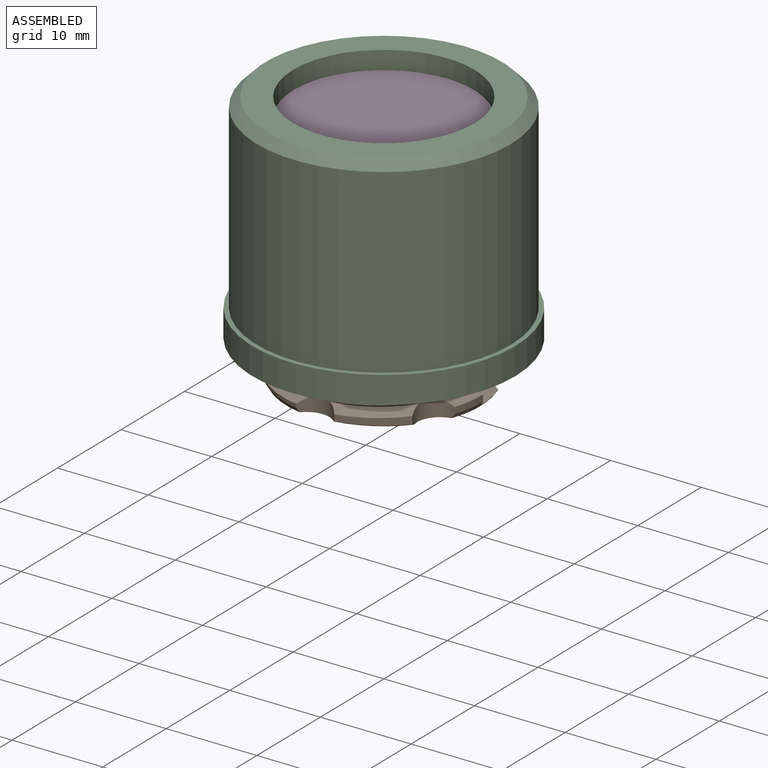
[diagram: assembled view]
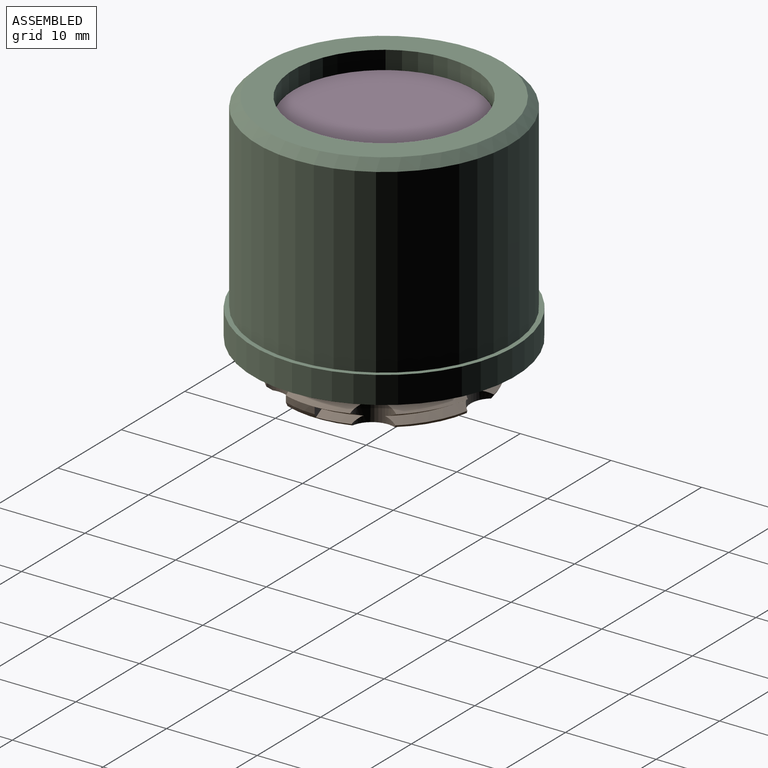
[diagram: assembled view, second angle]
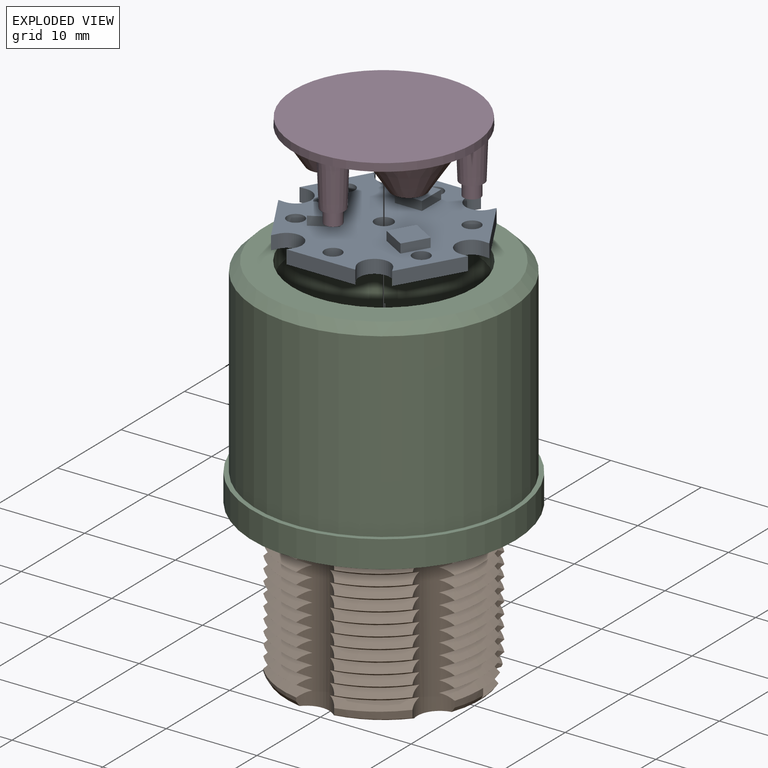
[diagram: exploded view]
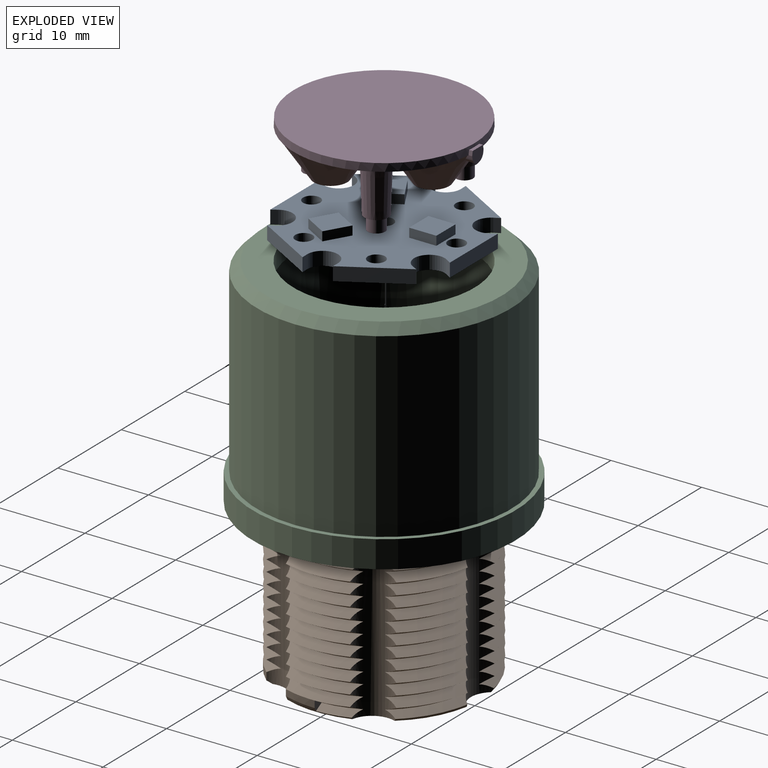
[diagram: exploded view, second angle]
ASSEMBLY  parts=4 mates=4
PART A: 48 faces, bbox 19.8x21x2.5 mm
  f0: cylinder r=1.69mm len=3.19mm, axis (0,0,-1), area 8.2mm2, adj f1,f30,f31,f32
  f1: plane 1.5x0.63mm, normal (-0.47,0.88,0), area 1.1mm2, adj f0,f2,f31,f32
  f2: plane 6.58x3.76mm, normal (-0.5,-0.87,0), area 11.4mm2, adj f1,f3,f31,f32
  f3: plane 1.5x0.71mm, normal (1,0.04,0), area 1.1mm2, adj f2,f4,f31,f32
  f4: cylinder r=1.69mm len=3.39mm, axis (0,0,-1), area 8.2mm2, adj f3,f5,f31,f32
  f5: plane 1.5x0.71mm, normal (-1,0.03,0), area 1.1mm2, adj f4,f6,f31,f32
  f6: plane 6.54x3.82mm, normal (0.5,-0.86,0), area 11.4mm2, adj f5,f7,f31,f32
  f7: plane 1.5x0.63mm, normal (0.47,0.88,0), area 1.1mm2, adj f6,f8,f31,f32
  f8: cylinder r=1.69mm len=3.2mm, axis (0,0,-1), area 8.2mm2, adj f7,f9,f31,f32
  f9: plane 1.5x0.61mm, normal (-0.53,-0.85,0), area 1.1mm2, adj f8,f10,f31,f32
  f10: plane 7.58x1.5mm, normal (1,0,0), area 11.4mm2, adj f9,f11,f31,f32
  f11: plane 1.5x0.6mm, normal (-0.53,0.85,0), area 1.1mm2, adj f10,f12,f31,f32
  f12: cylinder r=1.69mm len=3.19mm, axis (0,0,-1), area 8.2mm2, adj f11,f13,f31,f32
  f13: plane 1.5x0.63mm, normal (0.47,-0.88,0), area 1.1mm2, adj f12,f14,f31,f32
  f14: plane 6.58x3.76mm, normal (0.5,0.87,0), area 11.4mm2, adj f13,f15,f31,f32
  f15: plane 1.5x0.71mm, normal (-1,-0.04,0), area 1.1mm2, adj f14,f16,f31,f32
  f16: cylinder r=1.69mm len=3.39mm, axis (0,0,-1), area 8.2mm2, adj f15,f17,f31,f32
  f17: plane 1.5x0.71mm, normal (1,-0.03,0), area 1.1mm2, adj f16,f18,f31,f32
  f18: plane 6.54x3.82mm, normal (-0.5,0.86,0), area 11.4mm2, adj f17,f19,f31,f32
  f19: plane 1.5x0.63mm, normal (-0.47,-0.88,0), area 1.1mm2, adj f18,f20,f31,f32
  f20: cylinder r=1.69mm len=3.2mm, axis (0,0,-1), area 8.2mm2, adj f19,f21,f31,f32
  f21: plane 1.5x0.61mm, normal (0.53,0.85,0), area 1.1mm2, adj f20,f22,f31,f32
  f22: plane 7.58x1.5mm, normal (-1,0,0), area 11.4mm2, adj f21,f30,f31,f32
  f23: cylinder r=0.95mm len=1.9mm, axis (0,0,-1), area 9mm2, adj f31,f32
  f24: cylinder r=0.95mm len=1.9mm, axis (0,0,-1), area 9mm2, adj f31,f32
  f25: cylinder r=0.95mm len=1.9mm, axis (0,0,-1), area 9mm2, adj f31,f32
  f26: cylinder r=0.95mm len=1.9mm, axis (0,0,-1), area 9mm2, adj f31,f32
  f27: cylinder r=0.95mm len=1.9mm, axis (0,0,-1), area 9mm2, adj f31,f32
  f28: cylinder r=0.95mm len=1.9mm, axis (0,0,-1), area 9mm2, adj f31,f32
  f29: cylinder r=1mm len=2mm, axis (0,0,-1), area 9.4mm2, adj f31,f32
  f30: plane 1.5x0.6mm, normal (0.53,-0.85,0), area 1.1mm2, adj f0,f22,f31,f32
  f31: plane 20.95x19.83mm, normal (0,0,1), area 240mm2, adj f0,f1,f2,f3,f4,f5,f6,f7
  f32: plane 20.95x19.83mm, normal (0,0,-1), area 267mm2, adj f0,f1,f2,f3,f4,f5,f6,f7
  f33: plane 3x1mm, normal (0,1,0), area 3mm2, adj f31,f34,f36,f37
  f34: plane 3x1mm, normal (-1,0,0), area 3mm2, adj f31,f33,f35,f37
  f35: plane 3x1mm, normal (0,-1,0), area 3mm2, adj f31,f34,f36,f37
  f36: plane 3x1mm, normal (1,0,0), area 3mm2, adj f31,f33,f35,f37
  f37: plane 3x3mm, normal (0,0,1), area 9mm2, adj f33,f34,f35,f36
  f38: plane 2.6x1.5mm, normal (-0.87,-0.5,0), area 3mm2, adj f31,f39,f41,f42
  f39: plane 2.6x1.5mm, normal (0.5,-0.87,0), area 3mm2, adj f31,f38,f40,f42
  f40: plane 2.6x1.5mm, normal (0.87,0.5,0), area 3mm2, adj f31,f39,f41,f42
  f41: plane 2.6x1.5mm, normal (-0.5,0.87,0), area 3mm2, adj f31,f38,f40,f42
  f42: plane 4.1x4.1mm, normal (0,0,1), area 9mm2, adj f38,f39,f40,f41
  f43: plane 2.6x1.5mm, normal (0.87,-0.5,0), area 3mm2, adj f31,f44,f46,f47
  f44: plane 2.6x1.5mm, normal (0.5,0.87,0), area 3mm2, adj f31,f43,f45,f47
  f45: plane 2.6x1.5mm, normal (-0.87,0.5,0), area 3mm2, adj f31,f44,f46,f47
  f46: plane 2.6x1.5mm, normal (-0.5,-0.87,0), area 3mm2, adj f31,f43,f45,f47
  f47: plane 4.1x4.1mm, normal (0,0,1), area 9mm2, adj f43,f44,f45,f46
PART B: 240 faces, bbox 22x25.4x15.9 mm
  f0: cylinder r=10.95mm len=6.17mm, axis (0,0,-1), area 0mm2, adj f87,f88,f111,f114
  f1: cylinder r=10.95mm len=6.17mm, axis (0,0,-1), area 0mm2, adj f87,f88,f113,f116
  f2: cylinder r=10.95mm len=6.17mm, axis (0,0,-1), area 0mm2, adj f87,f88,f115,f118
  f3: cylinder r=10.95mm len=6.17mm, axis (0,0,-1), area 0mm2, adj f87,f88,f117,f120
  f4: cylinder r=10.95mm len=6.17mm, axis (0,0,-1), area 0mm2, adj f87,f88,f119,f122
  f5: cylinder r=10.95mm len=6.17mm, axis (0,0,-1), area 0mm2, adj f87,f88,f121,f124
  f6: cylinder r=10.95mm len=6.17mm, axis (0,0,-1), area 0mm2, adj f87,f88,f123,f126
  f7: cylinder r=10.95mm len=6.17mm, axis (0,0,-1), area 0mm2, adj f87,f88,f125,f128
  f8: cylinder r=10.95mm len=6.17mm, axis (0,0,-1), area 0mm2, adj f87,f88,f127,f130
  f9: cylinder r=10.95mm len=6.17mm, axis (0,0,-1), area 0mm2, adj f87,f88,f129,f132
  f10: cylinder r=10.95mm len=6.17mm, axis (0,0,-1), area 0mm2, adj f87,f88,f108,f131
  f11: cylinder r=10.95mm len=6.14mm, axis (0,0,-1), area 0mm2, adj f86,f87,f103,f158
  f12: cylinder r=10.95mm len=6.14mm, axis (0,0,-1), area 0mm2, adj f86,f87,f157,f160
  f13: cylinder r=10.95mm len=6.14mm, axis (0,0,-1), area 0mm2, adj f86,f87,f159,f162
  f14: cylinder r=10.95mm len=6.14mm, axis (0,0,-1), area 0mm2, adj f86,f87,f161,f164
  f15: cylinder r=10.95mm len=6.14mm, axis (0,0,-1), area 0mm2, adj f86,f87,f163,f166
  f16: cylinder r=10.95mm len=6.14mm, axis (0,0,-1), area 0mm2, adj f86,f87,f165,f168
  f17: cylinder r=10.95mm len=6.14mm, axis (0,0,-1), area 0mm2, adj f86,f87,f167,f170
  f18: cylinder r=10.95mm len=6.14mm, axis (0,0,-1), area 0mm2, adj f86,f87,f169,f172
  f19: cylinder r=10.95mm len=6.14mm, axis (0,0,-1), area 0mm2, adj f86,f87,f171,f174
  f20: cylinder r=10.95mm len=6.14mm, axis (0,0,-1), area 0mm2, adj f86,f87,f173,f176
  f21: cylinder r=10.95mm len=6.14mm, axis (0,0,-1), area 0mm2, adj f86,f87,f110,f175
  f22: cylinder r=10.95mm len=7.11mm, axis (0,0,-1), area 0mm2, adj f85,f86,f101,f178
  f23: cylinder r=10.95mm len=7.11mm, axis (0,0,-1), area 0mm2, adj f85,f86,f177,f180
  f24: cylinder r=10.95mm len=7.11mm, axis (0,0,-1), area 0mm2, adj f85,f86,f179,f182
  f25: cylinder r=10.95mm len=7.11mm, axis (0,0,-1), area 0mm2, adj f85,f86,f181,f184
  f26: cylinder r=10.95mm len=7.11mm, axis (0,0,-1), area 0mm2, adj f85,f86,f183,f186
  f27: cylinder r=10.95mm len=7.11mm, axis (0,0,-1), area 0mm2, adj f85,f86,f185,f188
  f28: cylinder r=10.95mm len=7.11mm, axis (0,0,-1), area 0mm2, adj f85,f86,f187,f190
  f29: cylinder r=10.95mm len=7.11mm, axis (0,0,-1), area 0mm2, adj f85,f86,f189,f192
  f30: cylinder r=10.95mm len=7.11mm, axis (0,0,-1), area 0mm2, adj f85,f86,f191,f194
  f31: cylinder r=10.95mm len=7.11mm, axis (0,0,-1), area 0mm2, adj f85,f86,f193,f196
  f32: cylinder r=10.95mm len=7.11mm, axis (0,0,-1), area 2.6mm2, adj f85,f86,f93,f105,f106,f195
  f33: cylinder r=10.95mm len=6.17mm, axis (0,0,-1), area 0mm2, adj f84,f85,f99,f198
  f34: cylinder r=10.95mm len=6.17mm, axis (0,0,-1), area 0mm2, adj f84,f85,f197,f200
  f35: cylinder r=10.95mm len=6.17mm, axis (0,0,-1), area 0mm2, adj f84,f85,f199,f202
  f36: cylinder r=10.95mm len=6.17mm, axis (0,0,-1), area 0mm2, adj f84,f85,f201,f204
  f37: cylinder r=10.95mm len=6.17mm, axis (0,0,-1), area 0mm2, adj f84,f85,f203,f206
  f38: cylinder r=10.95mm len=6.17mm, axis (0,0,-1), area 0mm2, adj f84,f85,f205,f208
  f39: cylinder r=10.95mm len=6.17mm, axis (0,0,-1), area 0mm2, adj f84,f85,f207,f210
  f40: cylinder r=10.95mm len=6.17mm, axis (0,0,-1), area 0mm2, adj f84,f85,f209,f212
  f41: cylinder r=10.95mm len=6.17mm, axis (0,0,-1), area 0mm2, adj f84,f85,f211,f214
  f42: cylinder r=10.95mm len=6.17mm, axis (0,0,-1), area 0mm2, adj f84,f85,f213,f216
  f43: cylinder r=10.95mm len=6.14mm, axis (0,0,-1), area 0mm2, adj f83,f84,f218,f239
  f44: cylinder r=10.95mm len=6.14mm, axis (0,0,-1), area 0mm2, adj f83,f84,f217,f220
  f45: cylinder r=10.95mm len=6.14mm, axis (0,0,-1), area 0mm2, adj f83,f84,f219,f222
  f46: cylinder r=10.95mm len=6.14mm, axis (0,0,-1), area 0mm2, adj f83,f84,f221,f224
  f47: cylinder r=10.95mm len=6.14mm, axis (0,0,-1), area 0mm2, adj f83,f84,f223,f226
  f48: cylinder r=10.95mm len=6.14mm, axis (0,0,-1), area 0mm2, adj f83,f84,f225,f228
  f49: cylinder r=10.95mm len=6.14mm, axis (0,0,-1), area 0mm2, adj f83,f84,f227,f230
  f50: cylinder r=10.95mm len=6.14mm, axis (0,0,-1), area 0mm2, adj f83,f84,f229,f232
  f51: cylinder r=10.95mm len=6.14mm, axis (0,0,-1), area 0mm2, adj f83,f84,f231,f234
  f52: cylinder r=10.95mm len=6.14mm, axis (0,0,-1), area 0mm2, adj f83,f84,f233,f236
  f53: cylinder r=10.95mm len=6.14mm, axis (0,0,-1), area 0mm2, adj f83,f84,f235,f238
  f54: cylinder r=10.95mm len=7.11mm, axis (0,0,-1), area 0mm2, adj f83,f88,f154,f155
  f55: cylinder r=10.95mm len=7.11mm, axis (0,0,-1), area 0mm2, adj f83,f88,f152,f153
  f56: cylinder r=10.95mm len=7.11mm, axis (0,0,-1), area 0mm2, adj f83,f88,f150,f151
  f57: cylinder r=10.95mm len=7.11mm, axis (0,0,-1), area 0mm2, adj f83,f88,f148,f149
  f58: cylinder r=10.95mm len=7.11mm, axis (0,0,-1), area 0mm2, adj f83,f88,f146,f147
  f59: cylinder r=10.95mm len=7.11mm, axis (0,0,-1), area 0mm2, adj f83,f88,f144,f145
  f60: cylinder r=10.95mm len=7.11mm, axis (0,0,-1), area 0mm2, adj f83,f88,f142,f143
  f61: cylinder r=10.95mm len=7.11mm, axis (0,0,-1), area 0mm2, adj f83,f88,f140,f141
  f62: cylinder r=10.95mm len=7.11mm, axis (0,0,-1), area 0mm2, adj f83,f88,f138,f139
  f63: cylinder r=10.95mm len=7.11mm, axis (0,0,-1), area 0mm2, adj f83,f88,f136,f137
  f64: cylinder r=10.95mm len=7.11mm, axis (0,0,-1), area 0mm2, adj f83,f88,f134,f135
  f65: cylinder r=10.95mm len=6.17mm, axis (0,0,-1), area 5.4mm2, adj f84,f85,f94,f215
  f66: cylinder r=10.95mm len=6.14mm, axis (0,0,-1), area 2.4mm2, adj f83,f84,f92,f237
  f67: plane 21.32x20.98mm, normal (0,0,-1), area 268mm2, adj f68,f71,f73,f75,f77,f79,f81,f83
  f68: cylinder r=3mm len=15mm, axis (0,0,-1), area 282.7mm2, adj f67,f70
  f69: cylinder r=10.95mm len=7.11mm, axis (0,0,-1), area 0.9mm2, adj f83,f88,f91,f133
  f70: plane 20.7x20.4mm, normal (0,0,1), area 295mm2, adj f68,f83,f84,f85,f86,f87,f88,f95
  f71: cylinder r=1.5mm len=10mm, axis (0,0,-1), area 94.2mm2, adj f67,f72
  f72: plane 3x3mm, normal (0,0,-1), area 7.1mm2, adj f71
  f73: cylinder r=1.5mm len=10mm, axis (0,0,-1), area 94.2mm2, adj f67,f74
  f74: plane 3x3mm, normal (0,0,-1), area 7.1mm2, adj f73
  f75: cylinder r=1.5mm len=10mm, axis (0,0,-1), area 94.2mm2, adj f67,f76
  f76: plane 3x3mm, normal (0,0,-1), area 7.1mm2, adj f75
  f77: cylinder r=1.5mm len=10mm, axis (0,0,-1), area 94.2mm2, adj f67,f78
  f78: plane 3x3mm, normal (0,0,-1), area 7.1mm2, adj f77
  f79: cylinder r=1.5mm len=10mm, axis (0,0,-1), area 94.2mm2, adj f67,f80
  f80: plane 3x3mm, normal (0,0,-1), area 7.1mm2, adj f79
  f81: cylinder r=1.5mm len=10mm, axis (0,0,-1), area 94.2mm2, adj f67,f82
  f82: plane 3x3mm, normal (0,0,-1), area 7.1mm2, adj f81
  f83: cylinder r=2.5mm len=15mm, axis (0,0,-1), area 55.8mm2, adj f43,f44,f45,f46,f47,f48,f49,f50
  f84: cylinder r=2.5mm len=15mm, axis (0,0,-1), area 56.2mm2, adj f33,f34,f35,f36,f37,f38,f39,f40
  f85: cylinder r=2.5mm len=15mm, axis (0,0,-1), area 56.2mm2, adj f22,f23,f24,f25,f26,f27,f28,f29
  f86: cylinder r=2.5mm len=15mm, axis (0,0,-1), area 54.8mm2, adj f11,f12,f13,f14,f15,f16,f17,f18
  f87: cylinder r=2.5mm len=15mm, axis (0,0,-1), area 54.9mm2, adj f0,f1,f2,f3,f4,f5,f6,f7
  f88: cylinder r=2.5mm len=15mm, axis (0,0,-1), area 55.3mm2, adj f0,f1,f2,f3,f4,f5,f6,f7
  f89: cone r=10.95mm half-angle=30deg, axis (0,0,1), area 2.4mm2, adj f67,f86,f87,f109
  f90: cone r=10.95mm half-angle=30deg, axis (0,0,1), area 3.7mm2, adj f67,f87,f88,f107
  f91: cone r=10.95mm half-angle=30deg, axis (0,0,1), area 4.2mm2, adj f67,f69,f83,f88
  f92: cone r=10.95mm half-angle=30deg, axis (0,0,1), area 4.2mm2, adj f66,f67,f83,f84
  f93: cone r=10.95mm half-angle=30deg, axis (0,0,1), area 2.7mm2, adj f32,f67,f85,f86,f104,f105
  f94: cone r=10.95mm half-angle=60deg, axis (0,0,1), area 4.2mm2, adj f65,f67,f84,f85
  f95: cone r=10.45mm half-angle=60deg, axis (0,0,-1), area 0.6mm2, adj f70,f86,f87,f102
  f96: cone r=10.45mm half-angle=60deg, axis (0,0,-1), area 2.1mm2, adj f70,f85,f86,f100
  f97: cone r=10.45mm half-angle=60deg, axis (0,0,-1), area 3.7mm2, adj f70,f84,f85,f98
  f98: bspline ~16.43x12.64mm, area 9.3mm2, adj f84,f85,f97,f99
  f99: bspline ~16.43x12.64mm, area 9.9mm2, adj f33,f84,f85,f98
  f100: bspline ~18.97x6.03mm, area 7.7mm2, adj f85,f86,f96,f101
  f101: bspline ~18.97x6.03mm, area 9.9mm2, adj f22,f85,f86,f100
  f102: bspline ~16.43x12.64mm, area 6.1mm2, adj f86,f87,f95,f103
  f103: bspline ~16.43x12.64mm, area 9.9mm2, adj f11,f86,f87,f102
  f104: bspline ~9.48x6.03mm, area 4mm2, adj f86,f93,f105,f106
  f105: plane 1.13x1.1mm, normal (0,1,0), area 0.6mm2, adj f32,f93,f104,f106
  f106: bspline ~9.48x6.03mm, area 4.9mm2, adj f32,f86,f104,f105
  f107: bspline ~16.43x12.64mm, area 9.6mm2, adj f87,f88,f90,f108
  f108: bspline ~16.43x12.64mm, area 9.9mm2, adj f10,f87,f88,f107
  f109: bspline ~16.43x12.64mm, area 8.8mm2, adj f86,f87,f89,f110
  f110: bspline ~16.43x12.64mm, area 9.9mm2, adj f21,f86,f87,f109
  f111: bspline ~16.43x12.64mm, area 9.9mm2, adj f0,f87,f88,f112
  f112: bspline ~16.43x12.64mm, area 3.4mm2, adj f70,f87,f88,f111
  f113: bspline ~16.43x12.64mm, area 9.9mm2, adj f1,f87,f88,f114
  f114: bspline ~16.43x12.64mm, area 9.9mm2, adj f0,f87,f88,f113
  f115: bspline ~16.43x12.64mm, area 9.9mm2, adj f2,f87,f88,f116
  f116: bspline ~16.43x12.64mm, area 9.9mm2, adj f1,f87,f88,f115
  f117: bspline ~16.43x12.64mm, area 9.9mm2, adj f3,f87,f88,f118
  f118: bspline ~16.43x12.64mm, area 9.9mm2, adj f2,f87,f88,f117
  f119: bspline ~16.43x12.64mm, area 9.9mm2, adj f4,f87,f88,f120
  f120: bspline ~16.43x12.64mm, area 9.9mm2, adj f3,f87,f88,f119
  f121: bspline ~16.43x12.64mm, area 9.9mm2, adj f5,f87,f88,f122
  f122: bspline ~16.43x12.64mm, area 9.9mm2, adj f4,f87,f88,f121
  f123: bspline ~16.43x12.64mm, area 9.9mm2, adj f6,f87,f88,f124
  f124: bspline ~16.43x12.64mm, area 9.9mm2, adj f5,f87,f88,f123
  f125: bspline ~16.43x12.64mm, area 9.9mm2, adj f7,f87,f88,f126
  f126: bspline ~16.43x12.64mm, area 9.9mm2, adj f6,f87,f88,f125
  f127: bspline ~16.43x12.64mm, area 9.9mm2, adj f8,f87,f88,f128
  f128: bspline ~16.43x12.64mm, area 9.9mm2, adj f7,f87,f88,f127
  f129: bspline ~16.43x12.64mm, area 9.9mm2, adj f9,f87,f88,f130
  f130: bspline ~16.43x12.64mm, area 9.9mm2, adj f8,f87,f88,f129
  f131: bspline ~16.43x12.64mm, area 9.9mm2, adj f10,f87,f88,f132
  f132: bspline ~16.43x12.64mm, area 9.9mm2, adj f9,f87,f88,f131
  f133: bspline ~18.97x6.03mm, area 9.9mm2, adj f69,f83,f88,f134
  f134: bspline ~18.97x6.03mm, area 9.9mm2, adj f64,f83,f88,f133
  f135: bspline ~18.97x6.03mm, area 9.9mm2, adj f64,f83,f88,f136
  f136: bspline ~18.97x6.03mm, area 9.9mm2, adj f63,f83,f88,f135
  f137: bspline ~18.97x6.03mm, area 9.9mm2, adj f63,f83,f88,f138
  f138: bspline ~18.97x6.03mm, area 9.9mm2, adj f62,f83,f88,f137
  f139: bspline ~18.97x6.03mm, area 9.9mm2, adj f62,f83,f88,f140
  f140: bspline ~18.97x6.03mm, area 9.9mm2, adj f61,f83,f88,f139
  f141: bspline ~18.97x6.03mm, area 9.9mm2, adj f61,f83,f88,f142
  f142: bspline ~18.97x6.03mm, area 9.9mm2, adj f60,f83,f88,f141
  f143: bspline ~18.97x6.03mm, area 9.9mm2, adj f60,f83,f88,f144
  f144: bspline ~18.97x6.03mm, area 9.9mm2, adj f59,f83,f88,f143
  f145: bspline ~18.97x6.03mm, area 9.9mm2, adj f59,f83,f88,f146
  f146: bspline ~18.97x6.03mm, area 9.9mm2, adj f58,f83,f88,f145
  f147: bspline ~18.97x6.03mm, area 9.9mm2, adj f58,f83,f88,f148
  f148: bspline ~18.97x6.03mm, area 9.9mm2, adj f57,f83,f88,f147
  f149: bspline ~18.97x6.03mm, area 9.9mm2, adj f57,f83,f88,f150
  f150: bspline ~18.97x6.03mm, area 9.9mm2, adj f56,f83,f88,f149
  f151: bspline ~18.97x6.03mm, area 9.9mm2, adj f56,f83,f88,f152
  f152: bspline ~18.97x6.03mm, area 9.9mm2, adj f55,f83,f88,f151
  f153: bspline ~18.97x6.03mm, area 9.9mm2, adj f55,f83,f88,f154
  f154: bspline ~18.97x6.03mm, area 9.9mm2, adj f54,f83,f88,f153
  f155: bspline ~18.97x6.03mm, area 9.5mm2, adj f54,f70,f83,f88,f156
  f156: bspline ~18.97x6.03mm, area 0.4mm2, adj f70,f88,f155
  f157: bspline ~16.43x12.64mm, area 9.9mm2, adj f12,f86,f87,f158
  f158: bspline ~16.43x12.64mm, area 9.9mm2, adj f11,f86,f87,f157
  f159: bspline ~16.43x12.64mm, area 9.9mm2, adj f13,f86,f87,f160
  f160: bspline ~16.43x12.64mm, area 9.9mm2, adj f12,f86,f87,f159
  f161: bspline ~16.43x12.64mm, area 9.9mm2, adj f14,f86,f87,f162
  f162: bspline ~16.43x12.64mm, area 9.9mm2, adj f13,f86,f87,f161
  f163: bspline ~16.43x12.64mm, area 9.9mm2, adj f15,f86,f87,f164
  f164: bspline ~16.43x12.64mm, area 9.9mm2, adj f14,f86,f87,f163
  f165: bspline ~16.43x12.64mm, area 9.9mm2, adj f16,f86,f87,f166
  f166: bspline ~16.43x12.64mm, area 9.9mm2, adj f15,f86,f87,f165
  f167: bspline ~16.43x12.64mm, area 9.9mm2, adj f17,f86,f87,f168
  f168: bspline ~16.43x12.64mm, area 9.9mm2, adj f16,f86,f87,f167
  f169: bspline ~16.43x12.64mm, area 9.9mm2, adj f18,f86,f87,f170
  f170: bspline ~16.43x12.64mm, area 9.9mm2, adj f17,f86,f87,f169
  f171: bspline ~16.43x12.64mm, area 9.9mm2, adj f19,f86,f87,f172
  f172: bspline ~16.43x12.64mm, area 9.9mm2, adj f18,f86,f87,f171
  f173: bspline ~16.43x12.64mm, area 9.9mm2, adj f20,f86,f87,f174
  f174: bspline ~16.43x12.64mm, area 9.9mm2, adj f19,f86,f87,f173
  f175: bspline ~16.43x12.64mm, area 9.9mm2, adj f21,f86,f87,f176
  f176: bspline ~16.43x12.64mm, area 9.9mm2, adj f20,f86,f87,f175
  f177: bspline ~18.97x6.03mm, area 9.9mm2, adj f23,f85,f86,f178
  f178: bspline ~18.97x6.03mm, area 9.9mm2, adj f22,f85,f86,f177
  f179: bspline ~18.97x6.03mm, area 9.9mm2, adj f24,f85,f86,f180
  f180: bspline ~18.97x6.03mm, area 9.9mm2, adj f23,f85,f86,f179
  f181: bspline ~18.97x6.03mm, area 9.9mm2, adj f25,f85,f86,f182
  f182: bspline ~18.97x6.03mm, area 9.9mm2, adj f24,f85,f86,f181
  f183: bspline ~18.97x6.03mm, area 9.9mm2, adj f26,f85,f86,f184
  f184: bspline ~18.97x6.03mm, area 9.9mm2, adj f25,f85,f86,f183
  f185: bspline ~18.97x6.03mm, area 9.9mm2, adj f27,f85,f86,f186
  f186: bspline ~18.97x6.03mm, area 9.9mm2, adj f26,f85,f86,f185
  f187: bspline ~18.97x6.03mm, area 9.9mm2, adj f28,f85,f86,f188
  f188: bspline ~18.97x6.03mm, area 9.9mm2, adj f27,f85,f86,f187
  f189: bspline ~18.97x6.03mm, area 9.9mm2, adj f29,f85,f86,f190
  f190: bspline ~18.97x6.03mm, area 9.9mm2, adj f28,f85,f86,f189
  f191: bspline ~18.97x6.03mm, area 9.9mm2, adj f30,f85,f86,f192
  f192: bspline ~18.97x6.03mm, area 9.9mm2, adj f29,f85,f86,f191
  f193: bspline ~18.97x6.03mm, area 9.9mm2, adj f31,f85,f86,f194
  f194: bspline ~18.97x6.03mm, area 9.9mm2, adj f30,f85,f86,f193
  f195: bspline ~18.97x6.03mm, area 9.9mm2, adj f32,f85,f86,f196
  f196: bspline ~18.97x6.03mm, area 9.9mm2, adj f31,f85,f86,f195
  f197: bspline ~16.43x12.64mm, area 9.9mm2, adj f34,f84,f85,f198
  f198: bspline ~16.43x12.64mm, area 9.9mm2, adj f33,f84,f85,f197
  f199: bspline ~16.43x12.64mm, area 9.9mm2, adj f35,f84,f85,f200
  f200: bspline ~16.43x12.64mm, area 9.9mm2, adj f34,f84,f85,f199
  f201: bspline ~16.43x12.64mm, area 9.9mm2, adj f36,f84,f85,f202
  f202: bspline ~16.43x12.64mm, area 9.9mm2, adj f35,f84,f85,f201
  f203: bspline ~16.43x12.64mm, area 9.9mm2, adj f37,f84,f85,f204
  f204: bspline ~16.43x12.64mm, area 9.9mm2, adj f36,f84,f85,f203
  f205: bspline ~16.43x12.64mm, area 9.9mm2, adj f38,f84,f85,f206
  f206: bspline ~16.43x12.64mm, area 9.9mm2, adj f37,f84,f85,f205
  f207: bspline ~16.43x12.64mm, area 9.9mm2, adj f39,f84,f85,f208
  f208: bspline ~16.43x12.64mm, area 9.9mm2, adj f38,f84,f85,f207
  f209: bspline ~16.43x12.64mm, area 9.9mm2, adj f40,f84,f85,f210
  f210: bspline ~16.43x12.64mm, area 9.9mm2, adj f39,f84,f85,f209
  f211: bspline ~16.43x12.64mm, area 9.9mm2, adj f41,f84,f85,f212
  f212: bspline ~16.43x12.64mm, area 9.9mm2, adj f40,f84,f85,f211
  f213: bspline ~16.43x12.64mm, area 9.9mm2, adj f42,f84,f85,f214
  f214: bspline ~16.43x12.64mm, area 9.9mm2, adj f41,f84,f85,f213
  f215: bspline ~16.43x12.64mm, area 9.9mm2, adj f65,f84,f85,f216
  f216: bspline ~16.43x12.64mm, area 9.9mm2, adj f42,f84,f85,f215
  f217: bspline ~16.43x12.64mm, area 9.9mm2, adj f44,f83,f84,f218
  f218: bspline ~16.43x12.64mm, area 9.9mm2, adj f43,f83,f84,f217
  f219: bspline ~16.43x12.64mm, area 9.9mm2, adj f45,f83,f84,f220
  f220: bspline ~16.43x12.64mm, area 9.9mm2, adj f44,f83,f84,f219
  f221: bspline ~16.43x12.64mm, area 9.9mm2, adj f46,f83,f84,f222
  f222: bspline ~16.43x12.64mm, area 9.9mm2, adj f45,f83,f84,f221
  f223: bspline ~16.43x12.64mm, area 9.9mm2, adj f47,f83,f84,f224
  f224: bspline ~16.43x12.64mm, area 9.9mm2, adj f46,f83,f84,f223
  f225: bspline ~16.43x12.64mm, area 9.9mm2, adj f48,f83,f84,f226
  f226: bspline ~16.43x12.64mm, area 9.9mm2, adj f47,f83,f84,f225
  f227: bspline ~16.43x12.64mm, area 9.9mm2, adj f49,f83,f84,f228
  f228: bspline ~16.43x12.64mm, area 9.9mm2, adj f48,f83,f84,f227
  f229: bspline ~16.43x12.64mm, area 9.9mm2, adj f50,f83,f84,f230
  f230: bspline ~16.43x12.64mm, area 9.9mm2, adj f49,f83,f84,f229
  f231: bspline ~16.43x12.64mm, area 9.9mm2, adj f51,f83,f84,f232
  f232: bspline ~16.43x12.64mm, area 9.9mm2, adj f50,f83,f84,f231
  f233: bspline ~16.43x12.64mm, area 9.9mm2, adj f52,f83,f84,f234
  f234: bspline ~16.43x12.64mm, area 9.9mm2, adj f51,f83,f84,f233
  f235: bspline ~16.43x12.64mm, area 9.9mm2, adj f53,f83,f84,f236
  f236: bspline ~16.43x12.64mm, area 9.9mm2, adj f52,f83,f84,f235
  f237: bspline ~16.43x12.64mm, area 9.9mm2, adj f66,f83,f84,f238
  f238: bspline ~16.43x12.64mm, area 9.9mm2, adj f53,f83,f84,f237
  f239: bspline ~16.43x12.64mm, area 6.3mm2, adj f43,f70,f83,f84
PART C: 22 faces, bbox 29x29x24.2 mm
  f0: cylinder r=10.95mm len=21.9mm, axis (0,0,-1), area 731.2mm2, adj f1,f14,f18,f19,f20
  f1: cylinder r=10.95mm len=21.9mm, axis (0,0,-1), area 0.7mm2, adj f0,f2,f19,f20
  f2: cylinder r=10.95mm len=21.9mm, axis (0,0,-1), area 0.7mm2, adj f1,f3,f19,f20
  f3: cylinder r=10.95mm len=21.9mm, axis (0,0,-1), area 0.7mm2, adj f2,f4,f19,f20
  f4: cylinder r=10.95mm len=21.9mm, axis (0,0,-1), area 0.7mm2, adj f3,f5,f19,f20
  f5: cylinder r=10.95mm len=21.9mm, axis (0,0,-1), area 0.7mm2, adj f4,f6,f19,f20
  f6: cylinder r=10.95mm len=21.9mm, axis (0,0,-1), area 0.7mm2, adj f5,f7,f19,f20
  f7: cylinder r=10.95mm len=21.9mm, axis (0,0,-1), area 0.7mm2, adj f6,f8,f19,f20
  f8: cylinder r=10.95mm len=21.9mm, axis (0,0,-1), area 0.3mm2, adj f7,f16,f19,f20
  f9: cylinder r=14.5mm len=29mm, axis (0,0,-1), area 273.3mm2, adj f10,f11
  f10: plane 29x29mm, normal (0,0,1), area 44.8mm2, adj f9,f12
  f11: plane 29x29mm, normal (0,0,-1), area 243.1mm2, adj f9,f16
  f12: cylinder r=14mm len=28mm, axis (0,0,-1), area 1759.3mm2, adj f10,f21
  f13: plane 26x26mm, normal (0,0,1), area 216.8mm2, adj f15,f21
  f14: plane 21.9x21.9mm, normal (0,0,-1), area 62.5mm2, adj f0,f15
  f15: cylinder r=10mm len=20mm, axis (0,0,-1), area 125.7mm2, adj f13,f14
  f16: cone r=10.95mm half-angle=30deg, axis (0,0,-1), area 44mm2, adj f8,f11,f17,f20
  f17: plane 1.1x0.94mm, normal (0,1,0), area 0.3mm2, adj f16,f19,f20
  f18: plane 1.24x1.05mm, normal (-0.95,-0.31,0), area 0.7mm2, adj f0,f19,f20
  f19: bspline ~27.83x24.1mm, area 806.1mm2, adj f0,f1,f2,f3,f4,f5,f6,f7
  f20: bspline ~27.83x24.1mm, area 780.1mm2, adj f0,f1,f2,f3,f4,f5,f6,f7
  f21: cone r=13mm half-angle=45deg, axis (0,0,-1), area 120mm2, adj f12,f13
PART D: 44 faces, bbox 20x20.3x7.5 mm
  f0: plane 3.34x3.34mm, normal (0,0,1), area 8.7mm2, adj f5
  f1: plane 3.34x3.34mm, normal (0,0,1), area 8.7mm2, adj f6
  f2: plane 1.9x1.9mm, normal (0,0,1), area 2.8mm2, adj f7
  f3: plane 1.9x1.9mm, normal (0,0,1), area 2.8mm2, adj f8
  f4: plane 1.9x1.9mm, normal (0,0,1), area 2.8mm2, adj f9
  f5: cone r=0mm half-angle=2deg, axis (0,0,1), area 25.2mm2, adj f0,f11
  f6: cone r=0mm half-angle=2deg, axis (0,0,1), area 25.2mm2, adj f1,f13
  f7: cylinder r=0.95mm len=1.9mm, axis (0,0,1), area 9mm2, adj f2,f17
  f8: cylinder r=0.95mm len=1.9mm, axis (0,0,1), area 9mm2, adj f3,f18
  f9: cylinder r=0.95mm len=1.9mm, axis (0,0,1), area 9mm2, adj f4,f19
  f10: plane 3.34x3.34mm, normal (0,0,1), area 8.7mm2, adj f22
  f11: plane 3.7x3.7mm, normal (0,0,1), area 1.1mm2, adj f5,f30
  f12: plane 0.48x0.25mm, normal (0,1,0), area 0.1mm2, adj f14,f30,f31,f40
  f13: plane 3.7x3.7mm, normal (0,0,1), area 1.1mm2, adj f6,f31
  f14: cylinder r=0.75mm len=1.5mm, axis (1,0,0), area 2.5mm2, adj f12,f15,f30,f31
  f15: plane 0.48x0.25mm, normal (0,-1,0), area 0.1mm2, adj f14,f29,f30,f31
  f16: plane 19.91x19.91mm, normal (0,0,-1), area 311.4mm2, adj f32
  f17: plane 2.64x2.64mm, normal (0,0,1), area 2.6mm2, adj f7,f33
  f18: plane 2.64x2.64mm, normal (0,0,1), area 2.6mm2, adj f8,f34
  f19: plane 2.64x2.64mm, normal (0,0,1), area 2.6mm2, adj f9,f35
  f20: plane 1.62x0.41mm, normal (0,0,-1), area 0.6mm2, adj f21,f32,f36,f37
  f21: plane 0.5x0.41mm, normal (-0.98,0,-0.17), area 0.2mm2, adj f20,f32,f37,f38
  f22: cone r=0mm half-angle=2deg, axis (0,0,1), area 25.2mm2, adj f10,f39
  f23: plane 0.42x0.25mm, normal (-0.87,0.5,0), area 0.1mm2, adj f24,f29,f30,f43
  f24: cylinder r=0.75mm len=1.98mm, axis (-0.5,-0.87,0), area 2.5mm2, adj f23,f25,f30,f43
  f25: plane 0.42x0.25mm, normal (0.87,-0.5,0), area 0.1mm2, adj f24,f30,f40,f43
  f26: plane 0.42x0.25mm, normal (-0.87,-0.5,0), area 0.1mm2, adj f27,f31,f40,f43
  f27: cylinder r=0.75mm len=1.98mm, axis (0.5,-0.87,0), area 2.5mm2, adj f26,f28,f31,f43
  f28: plane 0.42x0.25mm, normal (0.87,0.5,0), area 0.1mm2, adj f27,f29,f31,f43
  f29: plane 3.4x2.94mm, normal (0,0,1), area 3.5mm2, adj f15,f23,f28,f30,f31,f43
  f30: cone r=0mm half-angle=33.7deg, axis (0,0,-1), area 98.3mm2, adj f11,f12,f14,f15,f23,f24,f25,f29
  f31: cone r=0mm half-angle=33.7deg, axis (0,0,-1), area 98.3mm2, adj f12,f13,f14,f15,f26,f27,f28,f29
  f32: cone r=0mm half-angle=2deg, axis (0,0,1), area 52.4mm2, adj f16,f20,f21,f36,f40
  f33: cone r=0mm half-angle=2deg, axis (0,0,-1), area 45.7mm2, adj f17,f40
  f34: cone r=0mm half-angle=2deg, axis (0,0,-1), area 45.7mm2, adj f18,f40
  f35: cone r=0mm half-angle=2deg, axis (0,0,-1), area 45.7mm2, adj f19,f40
  f36: plane 0.5x0.41mm, normal (0.98,0,-0.17), area 0.2mm2, adj f20,f32,f37,f41
  f37: plane 1.8x1.5mm, normal (0,-1,0), area 2.3mm2, adj f20,f21,f36,f38,f41,f42
  f38: plane 0.66x0.29mm, normal (-0.98,0,0.17), area 0.2mm2, adj f21,f37,f40,f42,f43
  f39: plane 3.7x3.7mm, normal (0,0,1), area 1.1mm2, adj f22,f43
  f40: plane 19.97x19.93mm, normal (0,0,1), area 87.5mm2, adj f12,f25,f26,f30,f31,f32,f33,f34
  f41: plane 0.66x0.29mm, normal (0.98,0,0.17), area 0.2mm2, adj f36,f37,f40,f42,f43
  f42: cylinder r=0.86mm len=1.7mm, axis (0,1,0), area 2.2mm2, adj f37,f38,f41,f43
  f43: cone r=0mm half-angle=33.7deg, axis (0,0,-1), area 96.5mm2, adj f23,f24,f25,f26,f27,f28,f29,f38
PLACE A rot(axis=(0,0,-1),30.3deg) t=(0,0,47.7)mm
PLACE B t=(0,0,29.2)mm
PLACE C t=(0,0,33.2)mm
PLACE D rot(axis=(1,0,0),180deg) t=(0,5.34,55.05)mm
MATE revolute D.f9 <-> A.f27  axis (0,0,-1) through (0,-8,49.2)mm
MATE fastened D.f32 <-> C.f0  axis (0,0,1) through (0,0,55.2)mm
MATE cylindrical B.f0 <-> C.f9  axis (0,0,-1) through (0,0,29.2)mm
MATE revolute D.f7 <-> A.f23  axis (0,0,-1) through (6.93,4,49.2)mm
